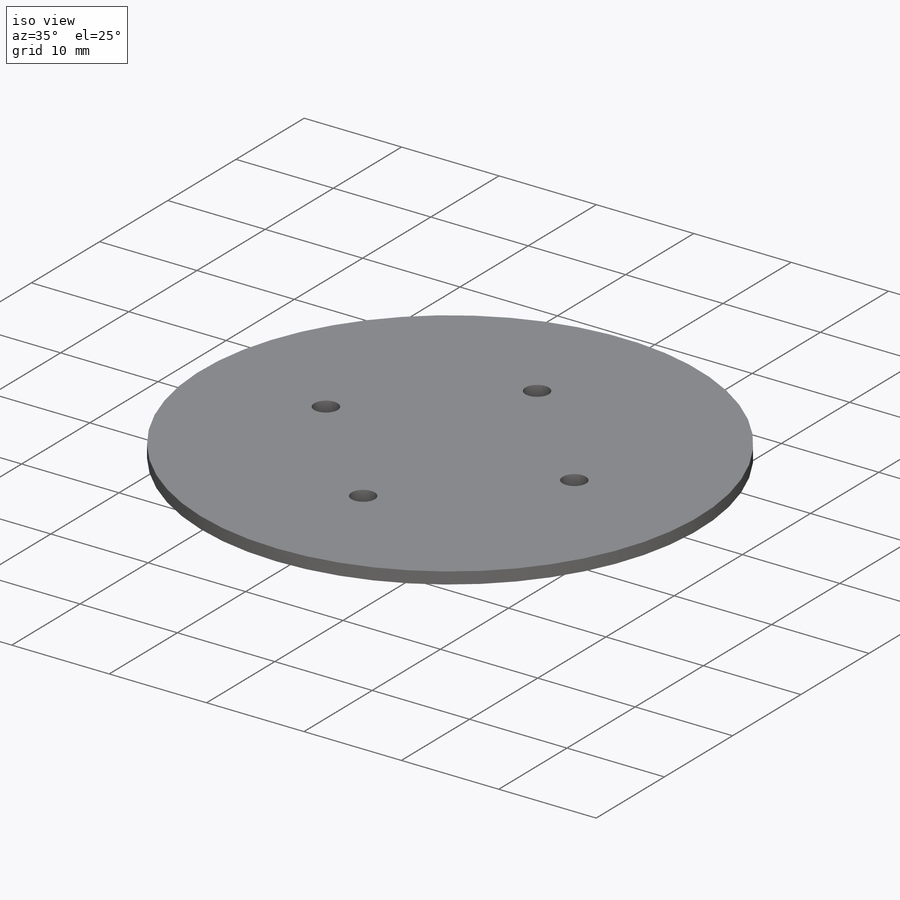
[diagram: iso view]
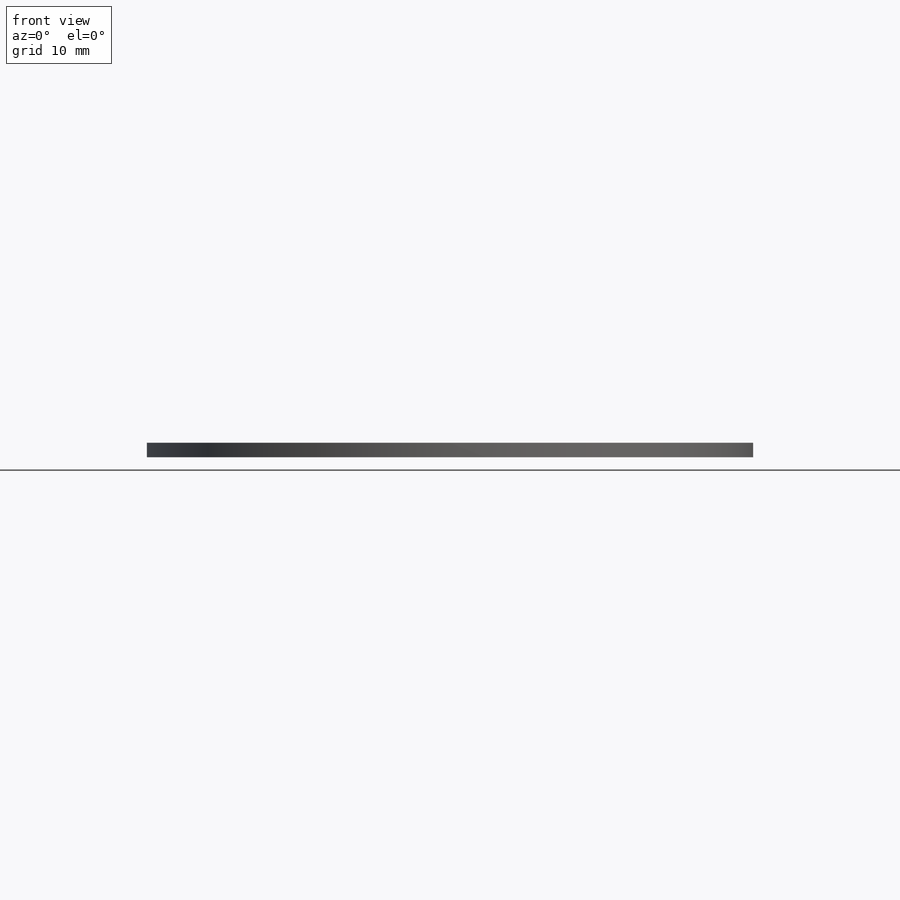
[diagram: front view]
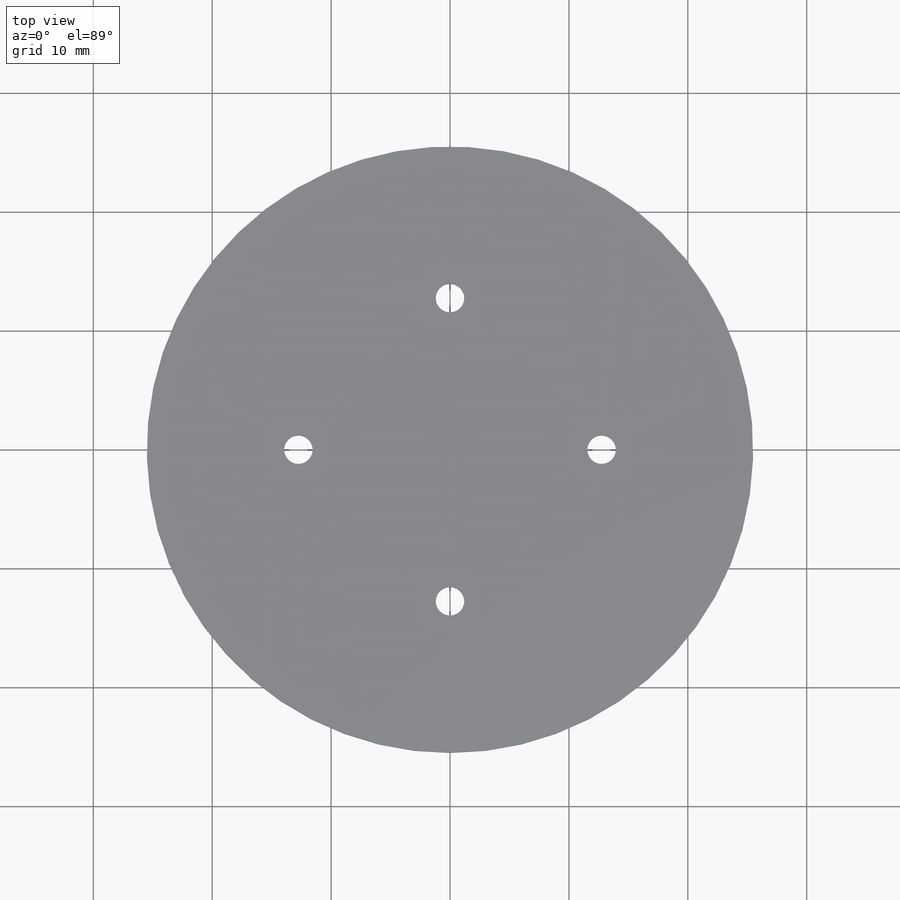
[diagram: top view]
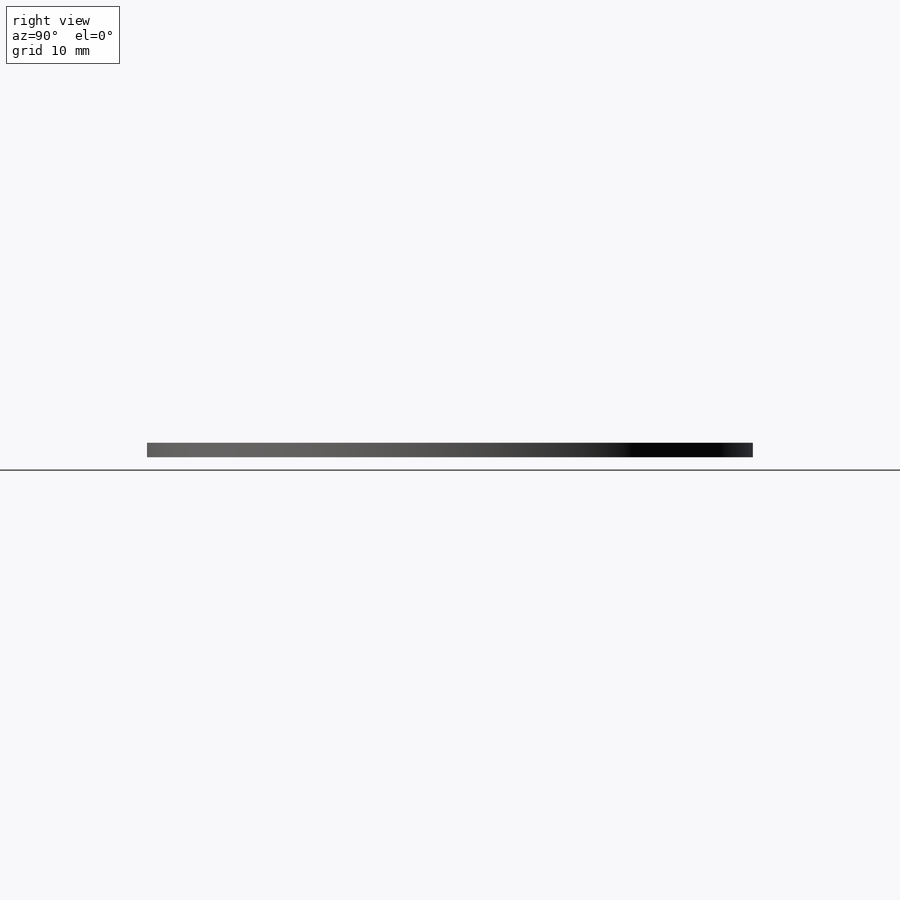
[diagram: right view]
SOLIDWORKS PART (.sldprt)
format: sldprt  version: not decoded by parser v0  size: 189,952 bytes
history: native  units: mm
features: sketch x10, sheet_metal_op x3, hole x2, material x1 + 2 further entries (+11 scaffold rows collapsed; 1 parser-record rows omitted)
feature tree (30):
  scaffold x11  (default folders/planes/origin — collapsed)
  material  "Material <not specified>"
  "Annotations"  RD1=90deg
  sketch  "Sketch2"  dims[c1.D1=~2.922085deg c2.D1=~0.043659deg c2.D2=0.389 c2.D3=1.1938mm c2.D6=500.0mm]
  sheet_metal_op  "Base-Flange1"
  sketch  "Sketch7"  dims[c1.D1=~2.922085deg c2.D1=~1570.796327mm c2.D2=0.0deg]
  hole  "M2 Clearance Hole1"  Diameter=0.13751deg Depth=0.572958deg
  sketch  "Sketch11"  dims[D1=~0.730521deg D2=~0.730521deg D3=~0.730521deg D4=~0.730521deg]
  sketch  "Sketch10"  dims[c1.D1=~1.455313deg c1.D2=~5.384657deg c1.4=~1.455313deg c1.D4=~1.091485deg c1.D7=~1.891907deg c1.D5=~1.455313deg c1.D3=~2.910626deg c1.D6=~1.819141deg c2.D5=~3.347219deg c2.D7=~0.514531deg c3.D7=~1570.796327mm c3.D6=~2059.488517mm c3.D8=~0.514531deg c4.D8=~2059.488517mm c4.D9=~1.029062deg c5.D9=~2059.488517mm c5.D3=~2.910626deg c5.D4=~1.819141deg c5.D5=~3.347219deg c5.D6=~0.254672deg c6.D6=~2094.395102mm c6.D7=~1.891907deg c6.D8=~0.254672deg c7.D8=~1570.796327mm c7.D9=~0.848908deg c8.D9=~2059.488517mm c8.D1=~0.727656deg c8.D2=~5.384657deg c8.D3=~1.455313deg c9.D1=~6.548908deg c10.D1=~2356.19449mm c11.D1=~1.455313deg c11.D2=~5.384657deg c11.D3=~2.910626deg c11.D4=~1.029062deg c12.D4=~1431.169987mm c12.D5=~0.848908deg c13.D5=~2059.488517mm c13.D6=~0.727656deg c13.D1=~1.455313deg c13.D2=~5.384657deg c13.D3=~1.819141deg c13.D4=~1.907804deg c14.D4=~2094.395102mm c14.D5=~0.848908deg c15.D5=~2059.488517mm c15.Hole Dia.=~0.13751deg c15.Hole Depth=~0.572958deg c15.D3=~0.848908deg c15.Drill Angle=~2059.488517mm]  [1 undecoded]
  sketch  "Bend-Lines1"
  sketch  "Bounding-Box1"
  sheet_metal_op  "Sheet-Metal(1)"
  "Flat-Pattern(1)"
  sketch  "Bend-Lines2"
  sketch  "Bounding-Box2"
  parser-record x1  (decoder bookkeeping rows leaked as tree rows — omitted from the tree; the rows remain in map.json)
  sheet_metal_op  "Flat-Pattern(1)"
  sketch  "Bend-Lines2"
  sketch  "Bounding-Box2"
  hole  "Sketch Transformation1"  [1 undecoded]
decode coverage: 5 of 15 modeling features carry decoded parameters; 2 rows unclassified (native names shown)
note: ~ marks probable driven/reference dimensions
note: 1 parameter value undecoded
note: suppression state not decoded; provenance and decode notes live in map.json
note: 1 required parameter value undecoded (feature->parameter linkage not recoverable at this tier; creation-order binding heuristic only, values carry confidence <= 0.55)
